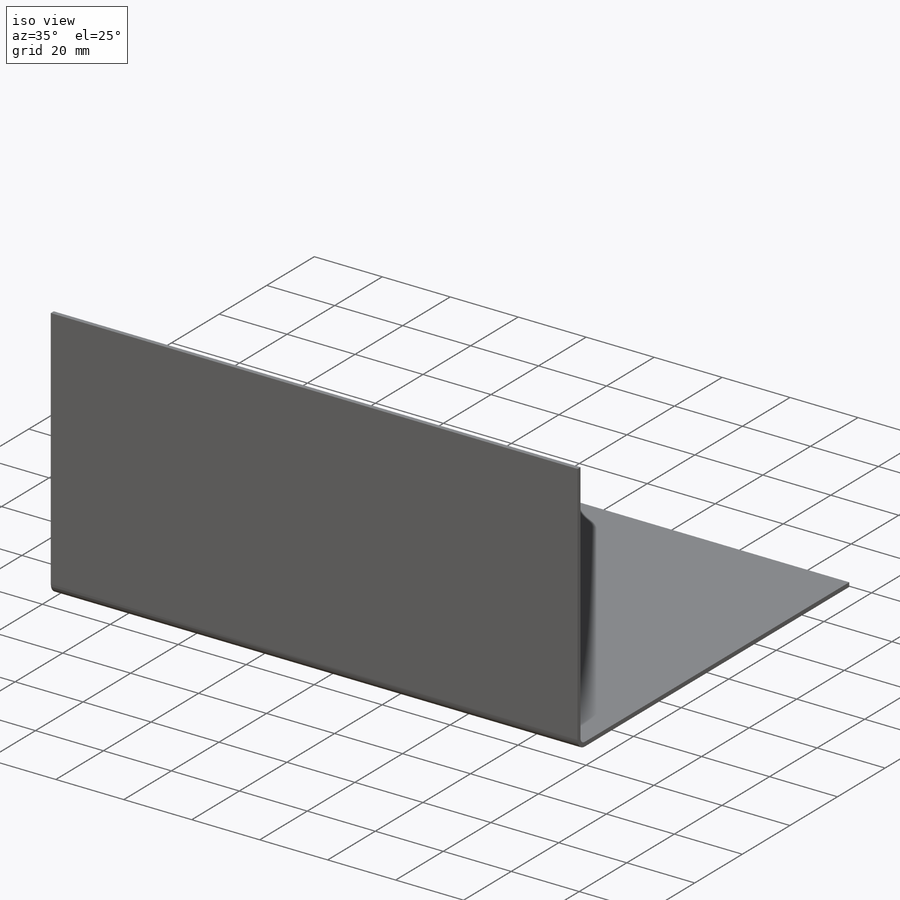
[diagram: iso view]
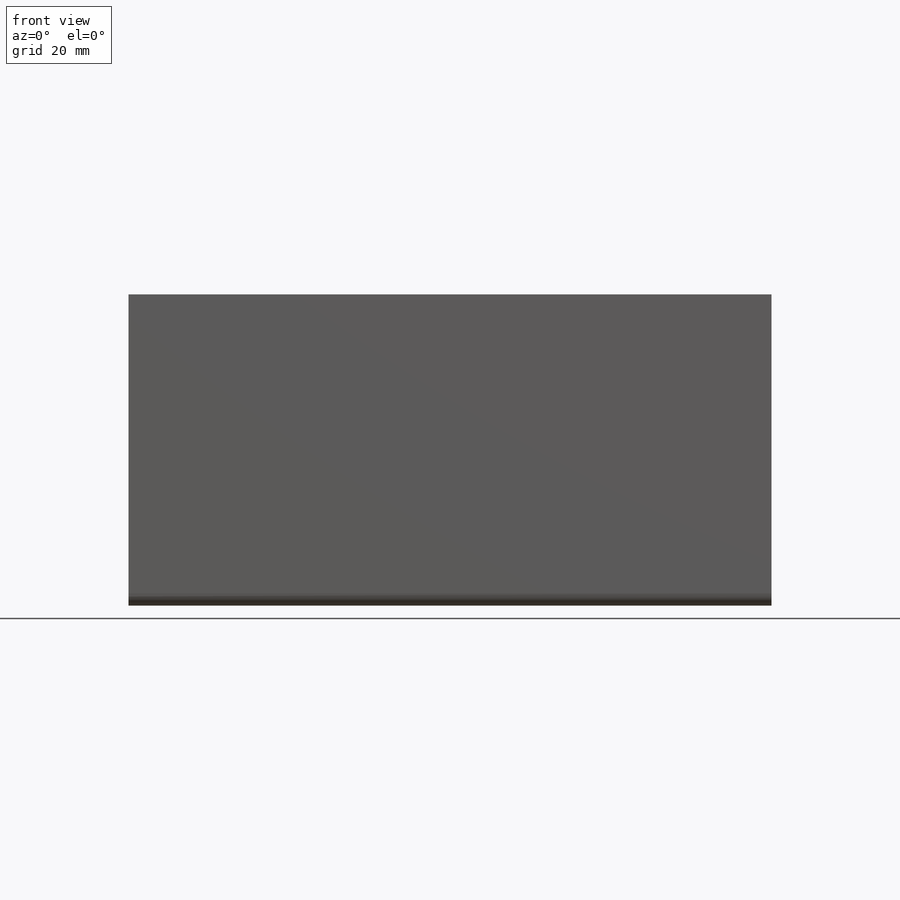
[diagram: front view]
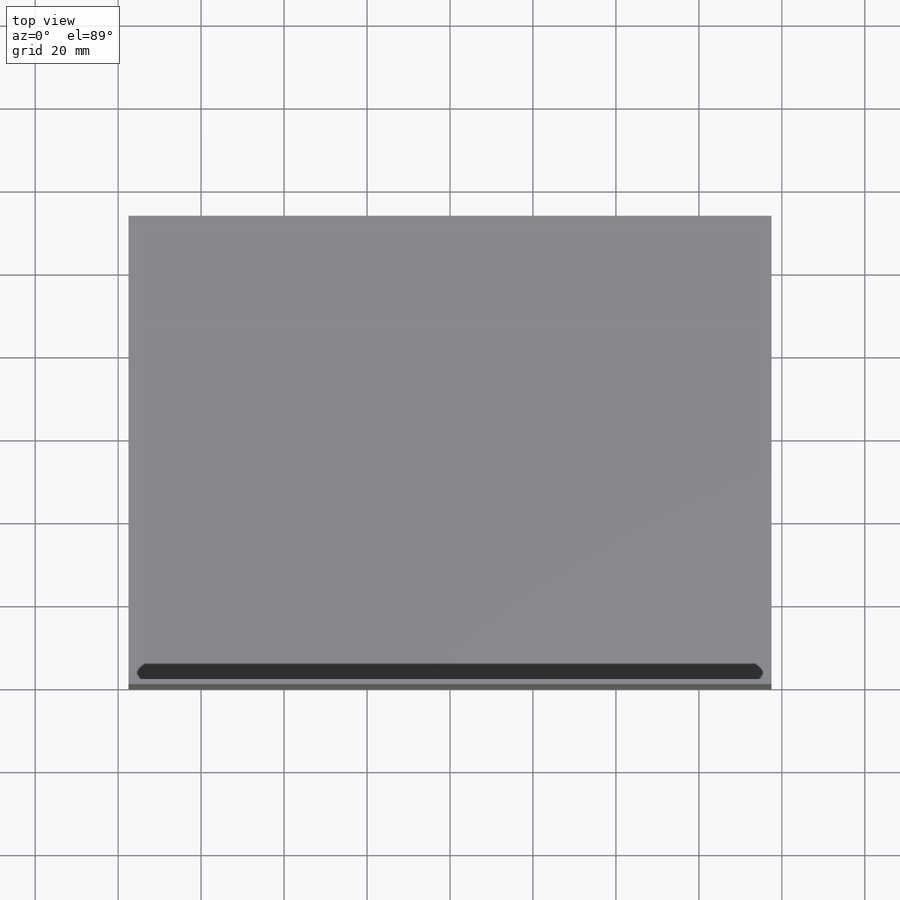
[diagram: top view]
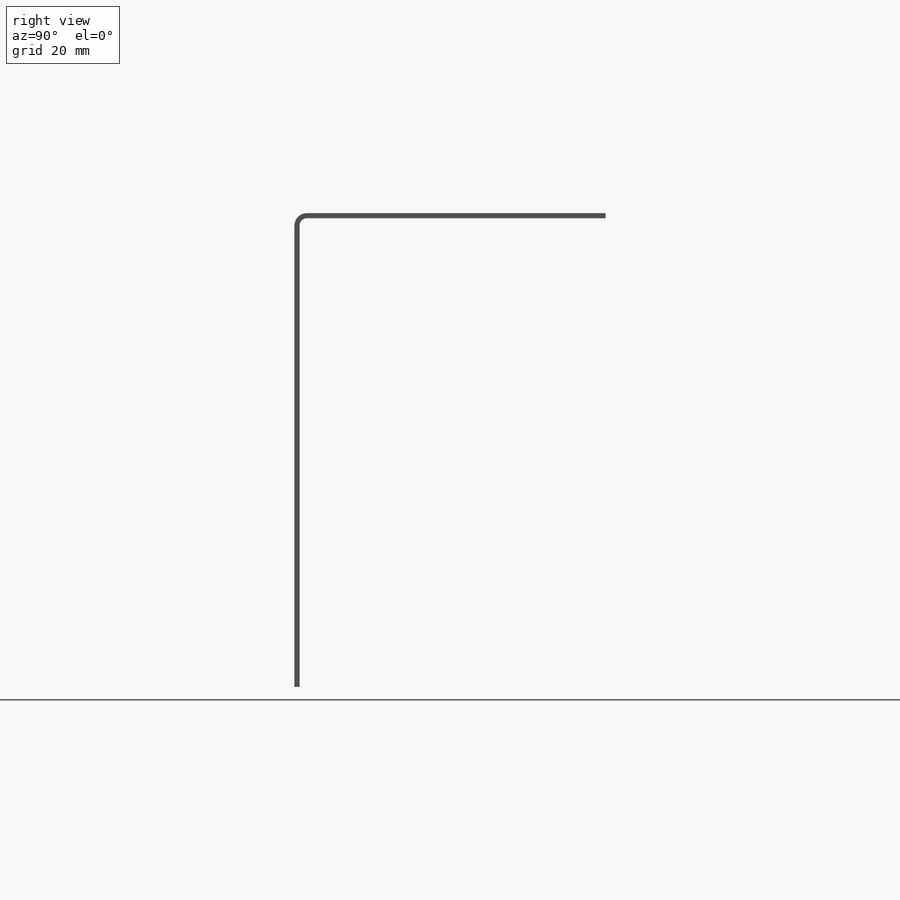
[diagram: right view]
SOLIDWORKS PART (.sldprt)
format: sldprt  version: not decoded by parser v0  size: 429,568 bytes
history: native  units: mm
features: sketch x27, sheet_metal_op x14, cut_extrude x2, material x1 + 8 further entries (+13 scaffold rows collapsed; 8 parser-record rows omitted)
feature tree (73):
  scaffold x13  (default folders/planes/origin — collapsed)
  material  "Material <not specified>"
  sketch  "Sketch1"  dims[c1.D1=100.0mm c1.D2=155.0mm c2.D1=1.71mm c2.D2=0.5 c2.D3=0.0mm c2.D6=500.0mm]
  sheet_metal_op  "Base-Flange2"
  sketch  "Sketch13"  dims[c1.D1=1.71mm c1.D4=90.0deg c1.D5=1.0 c1.D8=0.6225mm c1.D9=0.6225mm c2.D1=1.71mm c2.D2=500.0mm c2.D3=0.0mm c2.D6=10.0mm c2.D7=114.2mm]
  sketch  "Sketch15"  dims[D1=10.0mm D2=10.0mm]
  cut_extrude  "Cut-Extrude2"  Depth=62mm Edge-Flange4=0
  sketch  "Sketch20"
  sketch  "Sketch21"
  sheet_metal_op  "EdgeBend5"
  sheet_metal_op  "EdgeBend6"  Edge-Flange5=0
  sketch  "Sketch24"
  sheet_metal_op  "EdgeBend7"
  sketch  "Sketch26"  dims[c1.D1=~9.413936mm c2.D1=140.0deg c2.D2=0.0mm]
  cut_extrude  "Cut-Extrude3"  Depth=0 Edge-Flange6=0
  sketch  "Sketch29"
  sheet_metal_op  "EdgeBend8"  Edge-Flange7=0
  sketch  "Sketch32"
  sheet_metal_op  "EdgeBend9"
  sketch  "Bend-Lines3"
  sketch  "Bounding-Box3"
  sheet_metal_op  "Sheet-Metal3"
  "Flat-Pattern3"
  sketch  "Bend-Lines4"
  sketch  "Bounding-Box4"
  parser-record x8  (decoder bookkeeping rows leaked as tree rows — omitted from the tree; the rows remain in map.json)
  sheet_metal_op  "Sheet-Metal10"
  "Flat-Pattern3"
  sketch  "Bend-Lines4"
  sketch  "Bounding-Box4"
  sheet_metal_op  "Sheet-Metal12"
  "Flat-Pattern3"
  sketch  "Bend-Lines4"
  sketch  "Bounding-Box4"
  sheet_metal_op  "Sheet-Metal13"
  "Flat-Pattern3"
  sketch  "Bend-Lines4"
  sketch  "Bounding-Box4"
  sheet_metal_op  "Sheet-Metal14"
  "Flat-Pattern3"
  sketch  "Bend-Lines4"
  sketch  "Bounding-Box4"
  sheet_metal_op  "Sheet-Metal15"
  "Flat-Pattern3"
  sketch  "Bend-Lines4"
  sketch  "Bounding-Box4"
  sheet_metal_op  "Sheet-Metal16"
  "Flat-Pattern3"
  sketch  "Bend-Lines4"
  sketch  "Bounding-Box4"
  sheet_metal_op  "Sheet-Metal17"
  "Flat-Pattern3"
  sketch  "Bend-Lines4"
  sketch  "Bounding-Box4"
decode coverage: 8 of 43 modeling features carry decoded parameters; 8 rows unclassified (native names shown)
note: ~ marks probable driven/reference dimensions
note: suppression state not decoded; provenance and decode notes live in map.json
